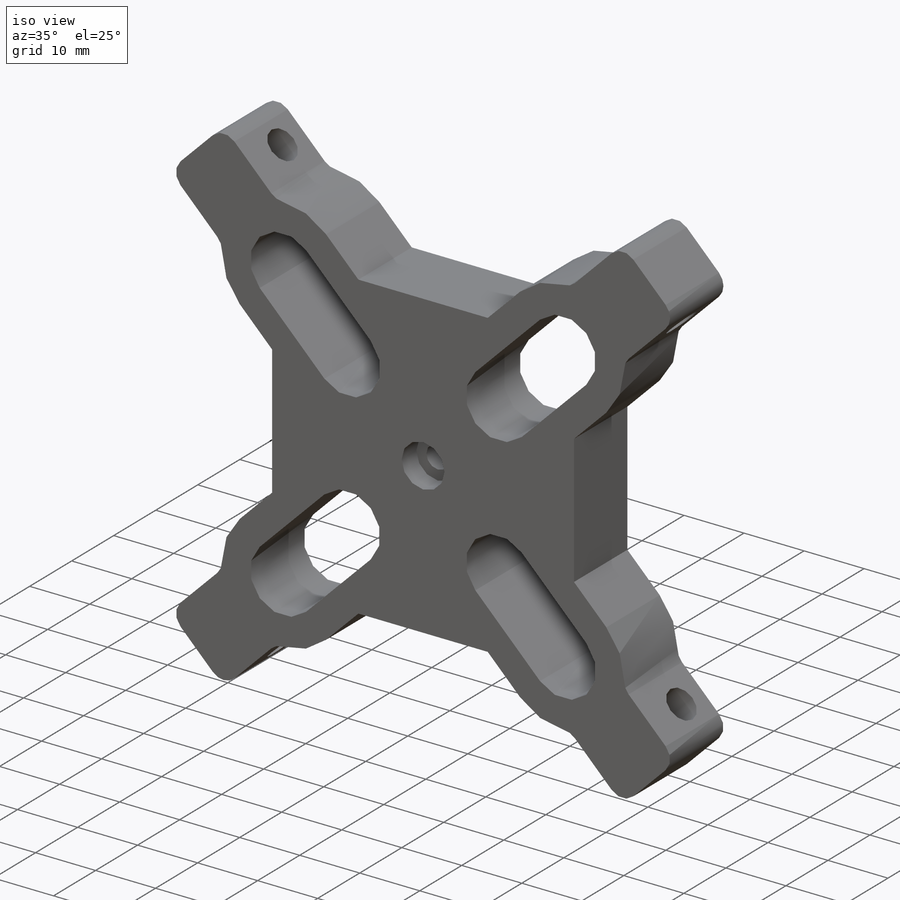
[diagram: iso view]
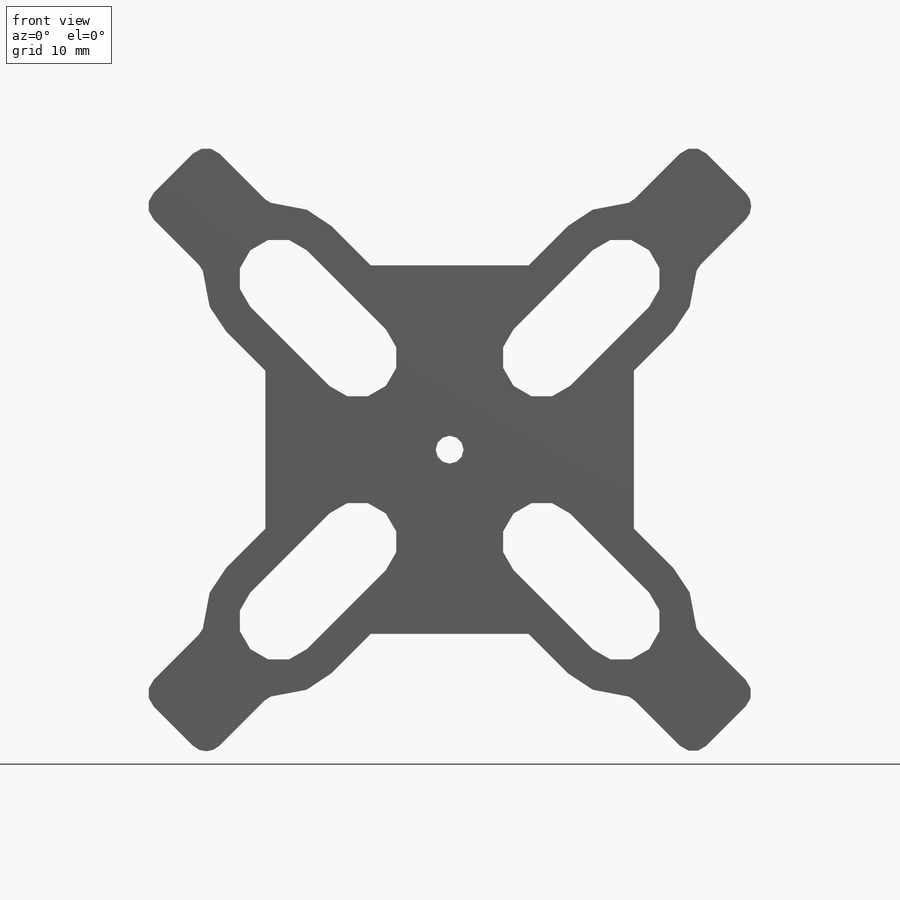
[diagram: front view]
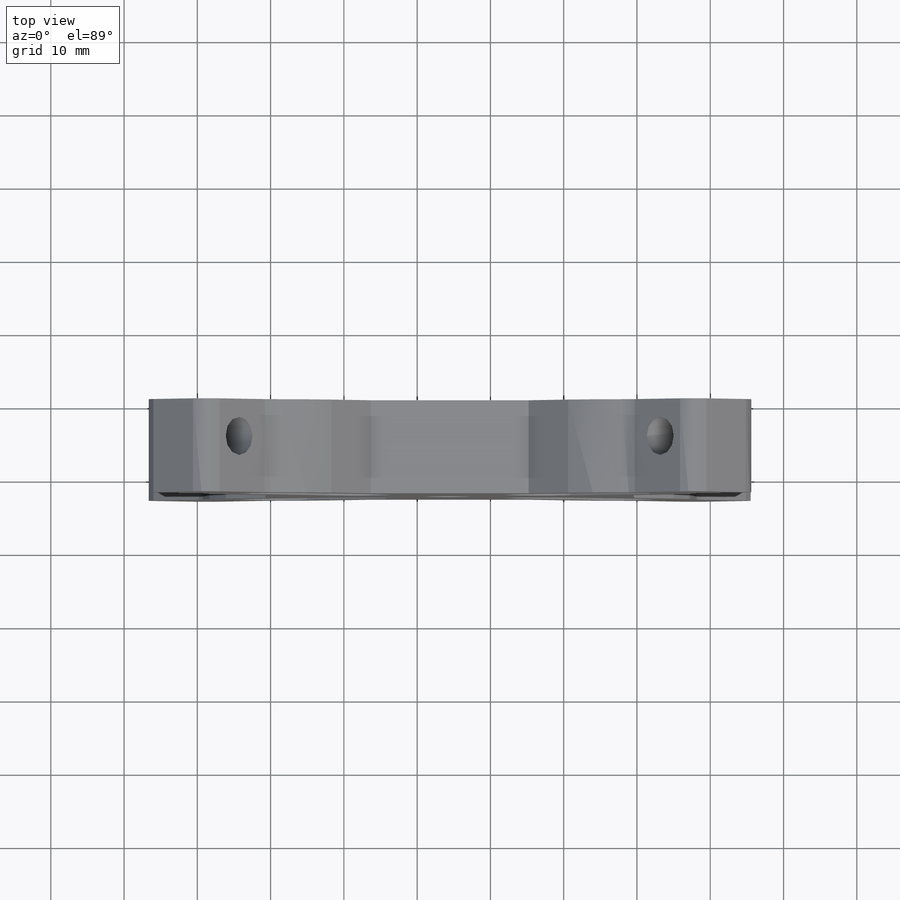
[diagram: top view]
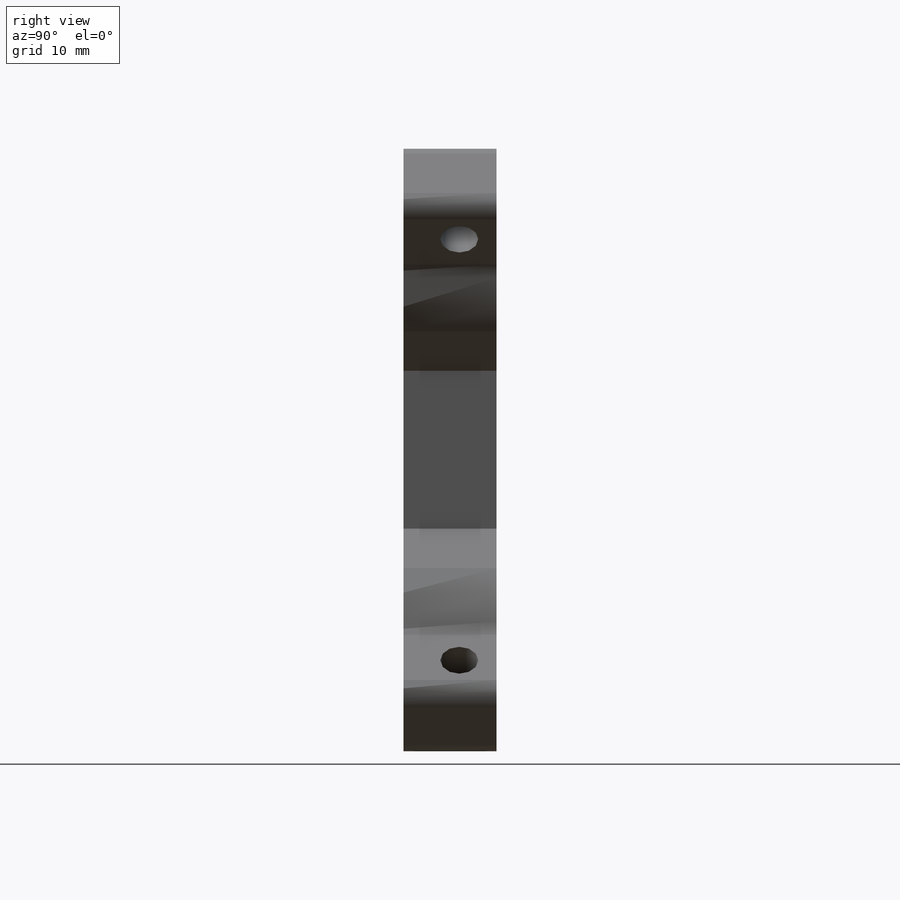
[diagram: right view]
SOLIDWORKS PART (.sldprt)
format: sldprt  version: not decoded by parser v0  size: 483,840 bytes
history: native  units: mm
features: sketch x9, mirror x8, plane x5, cut_extrude x3, extrude x2, hole x2, material x1, fillet x1 + 1 further entry (+7 scaffold rows collapsed)
feature tree (39):
  scaffold x7  (default folders/planes/origin — collapsed)
  material  "Material <not specified>"
  plane  "정면"
  plane  "윗면"
  plane  "우측면"
  "원점"
  sketch  "Sketch1"  dims[D1=71.12mm D2=71.12mm]
  extrude  "Extrude1"  Depth=12.7mm
  sketch  "Sketch3"  dims[c1.D2=5.842mm c1.D3=6.0mm c1.D1=12.0mm c1.D4=15.24mm c1.D5=15.0mm c2.D1=17.78mm c2.D3=~100.578869mm c3.D3=90.0deg]
  cut_extrude  "Cut-Extrude1"  [1 undecoded]
  plane  "Plane1"  Offset=35.56mm
  plane  "Plane2"  Offset=35.56mm
  mirror  "Mirror1"
  mirror  "Mirror2"
  mirror  "Mirror3"
  sketch  "Sketch6"  dims[c1.D1=11.0mm c1.D2=10.922mm c1.D3=15.24mm c2.D1=~31.717475mm]
  cut_extrude  "Cut-Extrude3"  [1 undecoded]
  mirror  "Mirror4"
  mirror  "Mirror5"
  mirror  "Mirror6"
  sketch  "Sketch7"  dims[c1.D1=20.32mm c1.D2=20.32mm c1.D5=20.32mm c1.D6=20.32mm c2.D1=20.32mm c2.D3=~7.497475mm c2.D4=~7.497475mm c3.D3=5.0mm c3.D4=5.0mm c4.D3=7.0mm c4.D4=~9.190602mm c5.D4=180.0deg c5.D5=~4.685468mm c6.D5=180.0deg c6.D6=~9.147123mm c7.D6=90.0deg c7.D7=~4.705913mm c8.D7=90.0deg c8.D3=15.24mm c8.D4=15.24mm c8.D5=~10.776307mm c9.D5=90.0deg c9.D6=~10.776307mm c10.D6=90.0deg c10.D3=13.462mm c10.D4=~12.211334mm c10.D1=15.24mm]
  cut_extrude  "Cut-Extrude5"  [1 undecoded]
  sketch  "Sketch10"  dims[c1.D4=20.32mm c1.D1=6.35mm c1.D2=20.32mm c1.D3=6.35mm c1.D5=~10.606602mm c2.D5=90.0deg c2.D4=~14.36841mm c3.D4=90.0deg c3.D2=20.32mm c3.D5=12.7mm c3.D6=~9.387351mm c4.D6=90.0deg c4.D7=~12.686316mm c4.D1=20.32mm c4.D2=20.32mm c5.D1=20.32mm c5.D2=6.35mm c5.D3=6.35mm c6.D1=6.35mm c6.D2=6.35mm c6.D3=20.32mm c6.D4=12.7mm]
  extrude  "Extrude2"  Depth=12.7mm
  hole  "CBORE for #6 Socket Head Cap Screw1"  Diameter=3.7973mm Depth=12.7mm
  sketch  "3DSketch1"  dims[c1.D1=~19.118149mm c1.D3=20.0mm c1.D2=~22.396051mm c2.D3=20.0mm c3.D3=~19.973735mm c3.D2=~16.908117mm c4.D3=20.0mm c4.D1=~20.908117mm c4.D2=20.0mm c5.D1=25.146mm c5.D2=25.146mm]
  sketch  "Sketch11"  dims[hole-wizard template sketch: 42 standard entries collapsed; hole parameters kept: c12.Thru Hole Depth=12.7mm c12.C'Bore Dia.=~7.14502mm c12.C'Bore Depth=3.5052mm]
  hole  "#6 (0.204) Diameter Hole1"  Diameter=5.1816mm Depth=66.04mm
  sketch  "3DSketch2"  dims[D1=6.35mm D2=5.08mm]
  sketch  "Sketch15"  dims[hole-wizard template sketch: 46 standard entries collapsed; hole parameters kept: c15.Hole Dia.=5.1816mm c15.Hole Depth=66.04mm c15.D3=~14.816244mm c15.Drill Angle=118.0deg]
  mirror  "Mirror8"
  mirror  "Mirror9"
  fillet  "Fillet3"  Radius=2.54mm
decode coverage: 14 of 25 modeling features carry decoded parameters; 1 rows unclassified (native names shown)
note: ~ marks probable driven/reference dimensions
note: 3 parameter values undecoded
summary: no parameter record found for 3 features
note: suppression state not decoded; provenance and decode notes live in map.json
